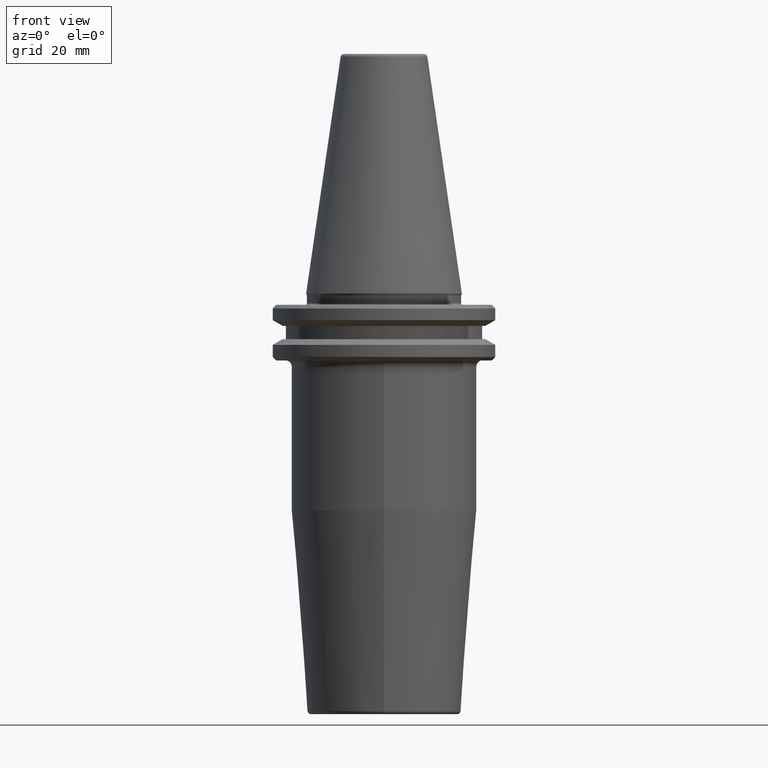
[diagram: clean part render]
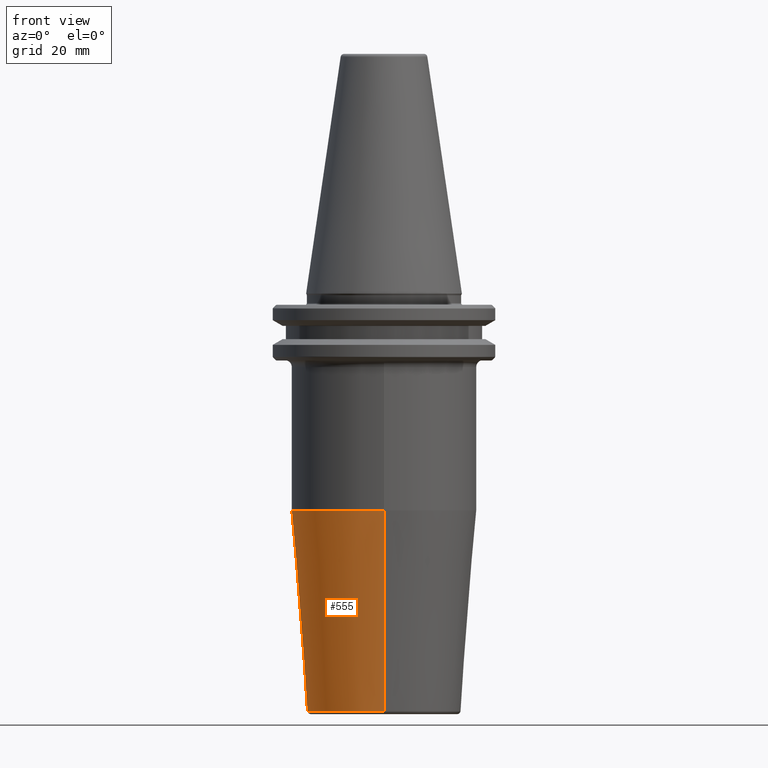
[diagram: same view with one face highlighted and labeled with its STEP entity id]
A machine part, front view. The second image highlights one B-rep face of the part: STEP entity #555.
In plain terms, the highlighted conical surface has half-angle 4.5 deg.
Its self-contained STEP definition (entity closure, byte-faithful):
#1 = CARTESIAN_POINT ( 'NONE',  ( 0.0000000000000000000, 2.216569900254646700E-015, -119.0784590957278200 ) ) ;
#84 = DIRECTION ( 'NONE',  ( 0.0000000000000000000, -1.000000000000000000, 0.0000000000000000000 ) ) ;
#136 = CARTESIAN_POINT ( 'NONE',  ( 2.694222958124176400E-015, -21.99999999999999300, -119.0784590957278200 ) ) ;
#141 = CARTESIAN_POINT ( 'NONE',  ( 2.694222958124176400E-015, 22.00000000000000000, -119.0784590957278200 ) ) ;
#210 = DIRECTION ( 'NONE',  ( -0.0000000000000000000, 1.946757673717420000E-016, -1.000000000000000000 ) ) ;
#239 = CARTESIAN_POINT ( 'NONE',  ( 0.0000000000000000000, -8.914585808034279600E-015, -61.90053778293550800 ) ) ;
#303 = ORIENTED_EDGE ( 'NONE', *, *, #670, .T. ) ;
#323 = FACE_OUTER_BOUND ( 'NONE', #781, .T. ) ;
#380 = VERTEX_POINT ( 'NONE', #1019 ) ;
#418 = DIRECTION ( 'NONE',  ( 0.0000000000000000000, 1.000000000000000000, 2.618450529776311800E-016 ) ) ;
#429 = VECTOR ( 'NONE', #842, 1000.000000000000000 ) ;
#550 = VERTEX_POINT ( 'NONE', #622 ) ;
#552 = ORIENTED_EDGE ( 'NONE', *, *, #593, .F. ) ;
#555 = ADVANCED_FACE ( 'NONE', ( #323 ), #1040, .T. ) ;
#559 = CIRCLE ( 'NONE', #1001, 21.99999999999999600 ) ;
#581 = CARTESIAN_POINT ( 'NONE',  ( 3.245314017740487300E-015, 26.50000000000000400, -61.90053778293550100 ) ) ;
#593 = EDGE_CURVE ( 'NONE', #641, #380, #559, .T. ) ;
#596 = DIRECTION ( 'NONE',  ( 0.0000000000000000000, 1.000000000000000000, 0.0000000000000000000 ) ) ;
#622 = CARTESIAN_POINT ( 'NONE',  ( 0.0000000000000000000, -26.50000000000001800, -61.90053778293551500 ) ) ;
#641 = VERTEX_POINT ( 'NONE', #136 ) ;
#665 = VERTEX_POINT ( 'NONE', #581 ) ;
#670 = EDGE_CURVE ( 'NONE', #641, #550, #945, .T. ) ;
#679 = CARTESIAN_POINT ( 'NONE',  ( 0.0000000000000000000, 2.216569900254646700E-015, -119.0784590957278200 ) ) ;
#692 = LINE ( 'NONE', #141, #429 ) ;
#693 = DIRECTION ( 'NONE',  ( 0.0000000000000000000, -0.07845909572783700500, 0.9969173337331285200 ) ) ;
#694 = VECTOR ( 'NONE', #693, 1000.000000000000100 ) ;
#781 = EDGE_LOOP ( 'NONE', ( #850, #552, #303, #969 ) ) ;
#802 = CIRCLE ( 'NONE', #1152, 26.50000000000000700 ) ;
#812 = AXIS2_PLACEMENT_3D ( 'NONE', #1, #980, #84 ) ;
#840 = CARTESIAN_POINT ( 'NONE',  ( 0.0000000000000000000, -21.99999999999999300, -119.0784590957278200 ) ) ;
#842 = DIRECTION ( 'NONE',  ( 9.608468044709112000E-018, 0.07845909572783661700, 0.9969173337331286300 ) ) ;
#850 = ORIENTED_EDGE ( 'NONE', *, *, #1096, .F. ) ;
#879 = EDGE_CURVE ( 'NONE', #550, #665, #802, .T. ) ;
#945 = LINE ( 'NONE', #840, #694 ) ;
#969 = ORIENTED_EDGE ( 'NONE', *, *, #879, .T. ) ;
#980 = DIRECTION ( 'NONE',  ( 0.0000000000000000000, -1.946757673717420000E-016, 1.000000000000000000 ) ) ;
#1001 = AXIS2_PLACEMENT_3D ( 'NONE', #679, #1038, #596 ) ;
#1019 = CARTESIAN_POINT ( 'NONE',  ( 0.0000000000000000000, 22.00000000000000000, -119.0784590957278200 ) ) ;
#1038 = DIRECTION ( 'NONE',  ( -0.0000000000000000000, 1.946757673717420000E-016, -1.000000000000000000 ) ) ;
#1040 = CONICAL_SURFACE ( 'NONE', #812, 21.99999999999999600, 0.07853981633973666800 ) ;
#1096 = EDGE_CURVE ( 'NONE', #380, #665, #692, .T. ) ;
#1152 = AXIS2_PLACEMENT_3D ( 'NONE', #239, #210, #418 ) ;